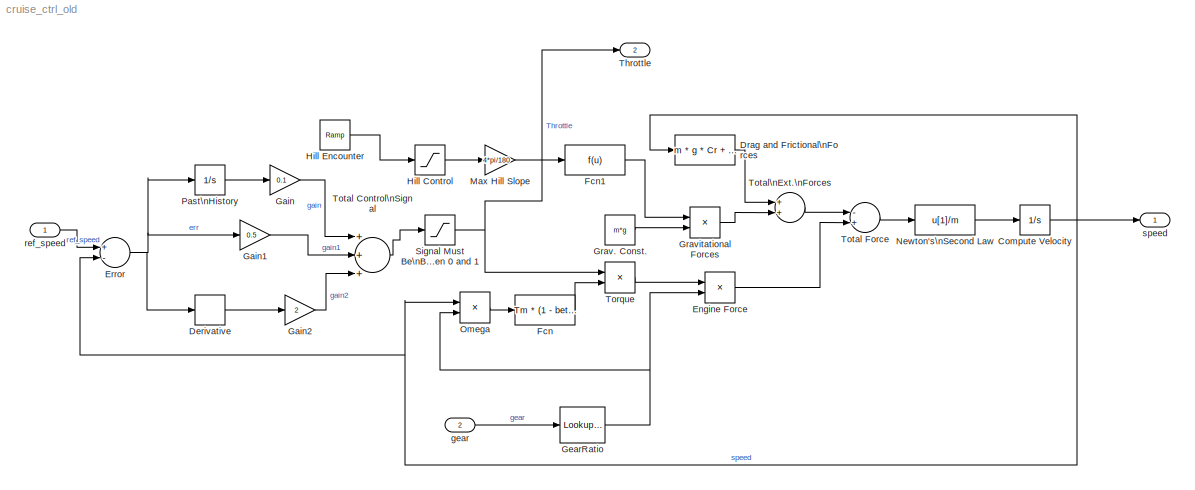
MODEL cruise_ctrl_old
KIND model
CONFIG PreLoadFcn = m = 1000;\nalpha = [40, 25, 16, 12, 10];\nTm = 190;\nwm = 420;\nbeta = 0.4;\nCr = 0.01;\nrho = 1.3;\nCd = 0.32;\nA = 2.4;\ng = 9.8;\ntheta = 0;\ngear = 3;
BLOCK [Integrator] Compute Velocity
  InitialCondition = 20
  Ports = [1, 1]
  SID = 2
BLOCK [Derivative] Derivative
  SID = 31
BLOCK [Fcn] Drag and Frictional\nForces
  Expr = m * g * Cr + 0.5 * rho * Cd * A * (u[1])^2
  SID = 3
BLOCK [Product] Engine Force
  InputSameDT = off
  Inputs = **
  OutDataTypeStr = Inherit: Inherit via internal rule
  Ports = [2, 1]
  RndMeth = Floor
  SID = 4
  SaturateOnIntegerOverflow = off
BLOCK [Sum] Error
  InputSameDT = off
  Inputs = +-
  OutDataTypeStr = Inherit: Inherit via internal rule
  Ports = [2, 1]
  SID = 5
  SaturateOnIntegerOverflow = off
BLOCK [Fcn] Fcn
  Expr = Tm * (1 - beta * (u[1]/wm - 1)^2)
  SID = 6
BLOCK [Fcn] Fcn1
  SID = 7
BLOCK [Gain] Gain
  Gain = 0.1
  OutDataTypeStr = Inherit: Inherit via internal rule
  ParamDataTypeStr = Inherit: Inherit via internal rule
  SID = 13
  SaturateOnIntegerOverflow = off
BLOCK [Gain] Gain1
  Gain = 0.5
  OutDataTypeStr = Inherit: Inherit via internal rule
  ParamDataTypeStr = Inherit: Inherit via internal rule
  SID = 21
  SaturateOnIntegerOverflow = off
BLOCK [Gain] Gain2
  Gain = 2
  OutDataTypeStr = Inherit: Inherit via internal rule
  ParamDataTypeStr = Inherit: Inherit via internal rule
  SID = 32
  SaturateOnIntegerOverflow = off
BLOCK [Lookup_n-D] GearRatio
  BreakpointsForDimension1 = [1,2,3,4,5]
  InternalRulePriority = Speed
  NumberOfTableDimensions = 1
  Ports = [1, 1]
  RndMeth = Simplest
  SID = 40
  Table = [40,25,16,12,10]
BLOCK [Constant] Grav. Const.
  SID = 9
  Value = m*g
BLOCK [Product] Gravitational Forces
  InputSameDT = off
  OutDataTypeStr = Inherit: Inherit via internal rule
  Ports = [2, 1]
  SID = 10
  SaturateOnIntegerOverflow = off
BLOCK [Saturate] Hill Control
  InputPortMap = u0
  LowerLimit = 0
  Ports = [1, 1]
  SID = 11
  UpperLimit = 1
BLOCK [Reference] Hill Encounter  REF=simulink/Sources/Ramp
  Ports = [0, 1]
  SID = 12
  SourceBlock = simulink/Sources/Ramp
  SourceProductBaseCode = SL
  SourceProductName = Simulink
  SourceType = Ramp
  VectorParams1D = on
  X0 = 0
  slope = 1
  start = 60
BLOCK [Gain] Max Hill Slope
  Gain = 4*pi/180
  OutDataTypeStr = Inherit: Inherit via internal rule
  ParamDataTypeStr = Inherit: Inherit via internal rule
  SID = 14
  SaturateOnIntegerOverflow = off
BLOCK [Fcn] Newton's\nSecond Law
  Expr = u[1]/m
  SID = 15
BLOCK [Product] Omega
  InputSameDT = off
  OutDataTypeStr = Inherit: Inherit via internal rule
  Ports = [2, 1]
  SID = 16
  SaturateOnIntegerOverflow = off
BLOCK [Integrator] Past\nHistory
  InitialCondition = 1
  Ports = [1, 1]
  SID = 20
BLOCK [Saturate] Signal Must Be\nBetween 0 and 1
  InputPortMap = u0
  LowerLimit = 0
  Ports = [1, 1]
  SID = 23
  UpperLimit = 1
BLOCK [Outport] Throttle
  IconDisplay = Port number
  Port = 2
  SID = 35
BLOCK [Product] Torque
  InputSameDT = off
  OutDataTypeStr = Inherit: Inherit via internal rule
  Ports = [2, 1]
  SID = 24
  SaturateOnIntegerOverflow = off
BLOCK [Sum] Total Control\nSignal
  InputSameDT = off
  Inputs = +++
  OutDataTypeStr = Inherit: Inherit via internal rule
  Ports = [3, 1]
  SID = 26
  SaturateOnIntegerOverflow = off
BLOCK [Sum] Total Force
  InputSameDT = off
  Inputs = -+
  OutDataTypeStr = Inherit: Inherit via internal rule
  Ports = [2, 1]
  SID = 27
  SaturateOnIntegerOverflow = off
BLOCK [Sum] Total\nExt.\nForces
  InputSameDT = off
  OutDataTypeStr = Inherit: Inherit via internal rule
  Ports = [2, 1]
  SID = 25
  SaturateOnIntegerOverflow = off
BLOCK [Inport] gear
  IconDisplay = Port number
  Port = 2
  SID = 36
BLOCK [Inport] ref_speed
  IconDisplay = Port number
  SID = 29
BLOCK [Outport] speed
  IconDisplay = Port number
  SID = 30
NET Compute Velocity:1 -> Drag and Frictional\nForces:1, Error:2, Omega:1, speed:1
LINE Derivative:1 -> Gain2:1
LINE Drag and Frictional\nForces:1 -> Total\nExt.\nForces:1
LINE Engine Force:1 -> Total Force:2
NET Error:1 -> Derivative:1, Gain1:1, Past\nHistory:1
LINE Fcn1:1 -> Gravitational Forces:1
LINE Fcn:1 -> Torque:2
LINE Gain1:1 -> Total Control\nSignal:2
LINE Gain2:1 -> Total Control\nSignal:3
LINE Gain:1 -> Total Control\nSignal:1
NET GearRatio:1 -> Engine Force:2, Omega:2
LINE Grav. Const.:1 -> Gravitational Forces:2
LINE Gravitational Forces:1 -> Total\nExt.\nForces:2
LINE Hill Control:1 -> Max Hill Slope:1
LINE Hill Encounter:1 -> Hill Control:1
LINE Max Hill Slope:1 -> Fcn1:1
LINE Newton's\nSecond Law:1 -> Compute Velocity:1
LINE Omega:1 -> Fcn:1
LINE Past\nHistory:1 -> Gain:1
NET Signal Must Be\nBetween 0 and 1:1 -> Throttle:1, Torque:1
LINE Torque:1 -> Engine Force:1
LINE Total Control\nSignal:1 -> Signal Must Be\nBetween 0 and 1:1
LINE Total Force:1 -> Newton's\nSecond Law:1
LINE Total\nExt.\nForces:1 -> Total Force:1
LINE gear:1 -> GearRatio:1
LINE ref_speed:1 -> Error:1
note: NET lines group one-source signal fan-out (src -> all destinations, sorted); 1:1 wires keep LINE
